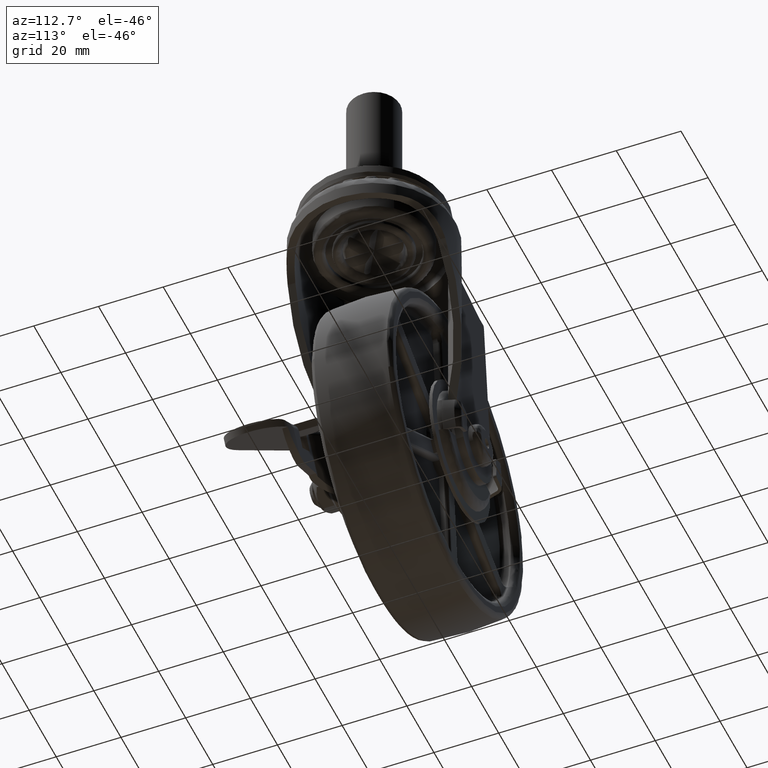
[diagram: clean part render]
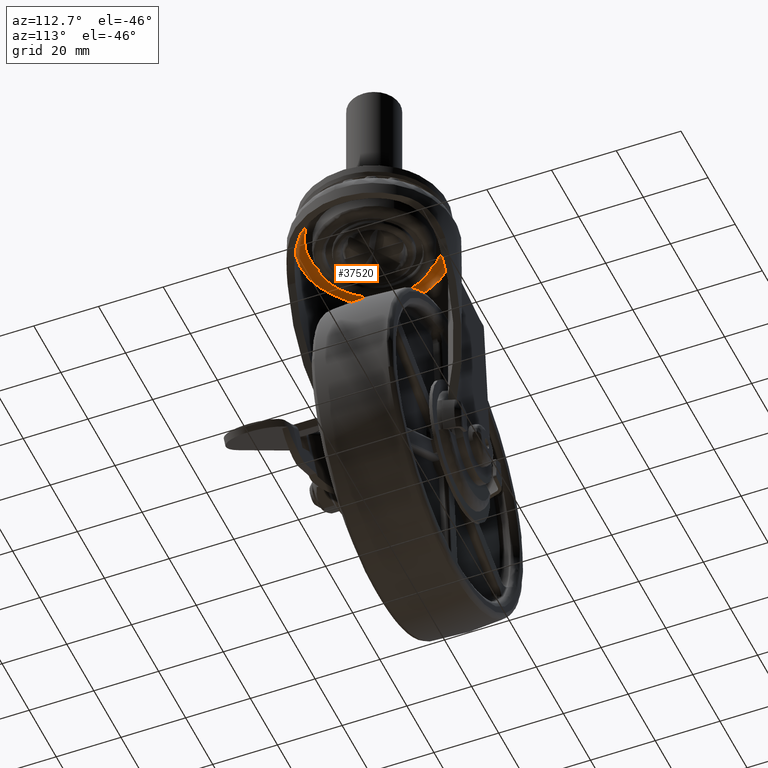
[diagram: same view with one face highlighted and labeled with its STEP entity id]
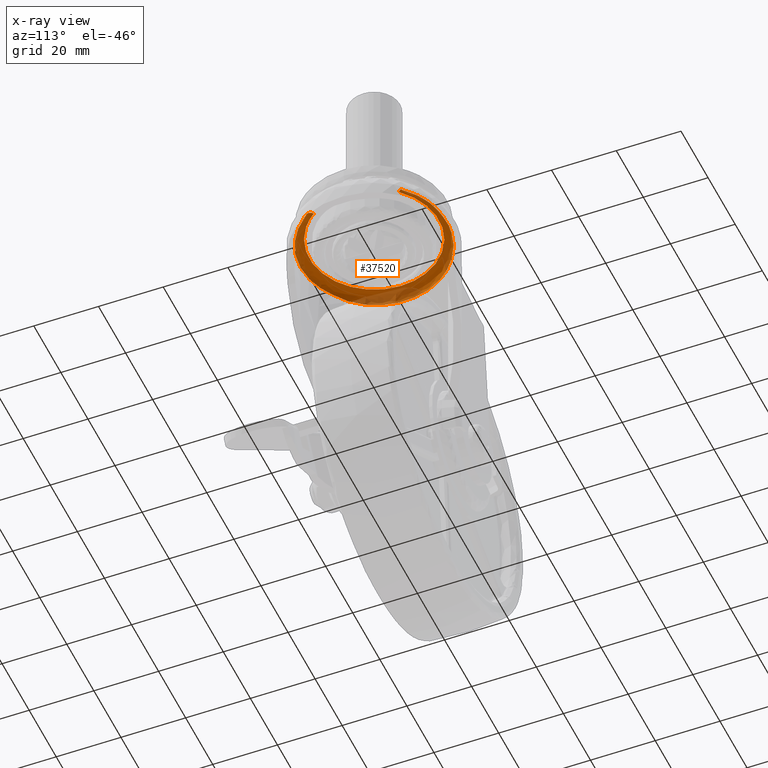
[diagram: x-ray of the same camera — body ghosted, the highlighted face saturated]
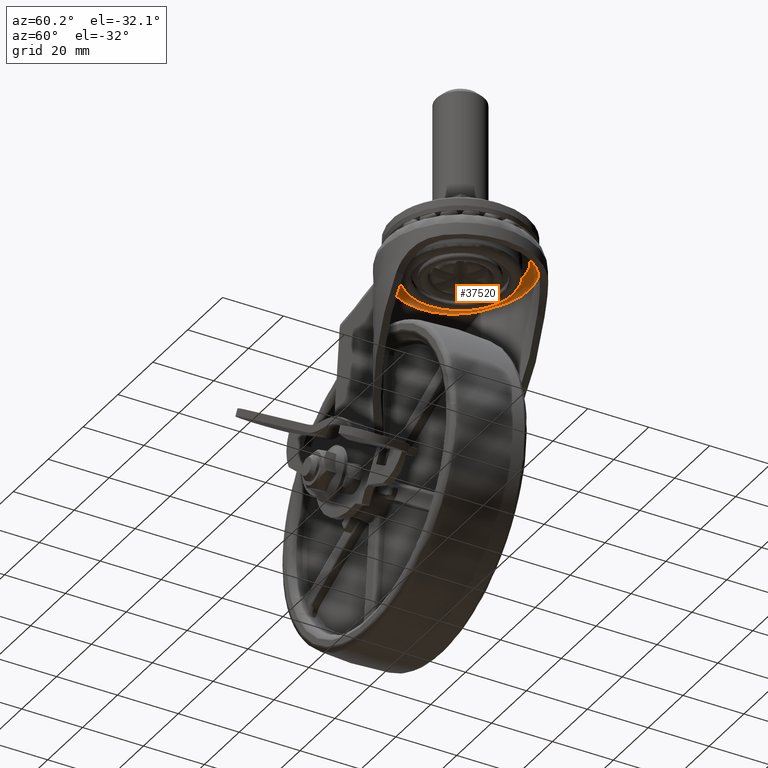
[diagram: same view with one face highlighted and labeled with its STEP entity id]
A machine part, auxiliary view. The second image highlights one B-rep face of the part: STEP entity #37520.
The next image is the same camera in x-ray: the body ghosted, the highlighted face saturated — about 25% of this face is hidden behind the body in this view.
A second angle (auxiliary view) of the same face is appended — the face is thin or edge-on in the first view.
In plain terms, the highlighted face is a freeform B-spline surface patch.
Its self-contained STEP definition (entity closure, byte-faithful):
#37278=CARTESIAN_POINT('',(48.043677421017364,15.080911270691319,57.307259519859684));
#37279=CARTESIAN_POINT('',(46.717406230158737,16.491851682513627,57.307259519859713));
#37280=CARTESIAN_POINT('',(45.165230569950012,17.649650817627556,57.307259519859691));
#37281=CARTESIAN_POINT('',(27.515579752322470,30.814881387577568,57.307259519859706));
#37282=CARTESIAN_POINT('',(14.350349182372456,13.165230569950012,57.307259519859691));
#37283=CARTESIAN_POINT('',(1.185118612422433,-4.484420247677530,57.307259519859706));
#37284=CARTESIAN_POINT('',(18.834769430049978,-17.649650817627546,57.307259519859691));
#37285=CARTESIAN_POINT('',(36.484420247677527,-30.814881387577568,57.307259519859706));
#37286=CARTESIAN_POINT('',(49.649650817627546,-13.165230569950022,57.307259519859691));
#37287=CARTESIAN_POINT('',(48.934800524242604,15.918558905852420,58.684582583563873));
#37288=CARTESIAN_POINT('',(47.534863498033275,17.407867983738893,58.684582583563866));
#37289=CARTESIAN_POINT('',(45.896474462001869,18.629975414957222,58.684582583563859));
#37290=CARTESIAN_POINT('',(27.266499047044665,32.526449876959113,58.684582583563859));
#37291=CARTESIAN_POINT('',(13.370024585042776,13.896474462001889,58.684582583563859));
#37292=CARTESIAN_POINT('',(-0.526449876959108,-4.733500952955327,58.684582583563859));
#37293=CARTESIAN_POINT('',(18.103525537998106,-18.629975414957222,58.684582583563859));
#37294=CARTESIAN_POINT('',(36.733500952955332,-32.526449876959113,58.684582583563859));
#37295=CARTESIAN_POINT('',(50.629975414957222,-13.896474462001889,58.684582583563859));
#37296=CARTESIAN_POINT('',(48.325499684939189,15.345821642844665,60.325770349296569));
#37297=CARTESIAN_POINT('',(46.975931294830424,16.781546548314147,60.325770349296576));
#37298=CARTESIAN_POINT('',(45.396490211172633,17.959683512771189,60.325770349296583));
#37299=CARTESIAN_POINT('',(27.436806698401440,31.356173723943826,60.325770349296576));
#37300=CARTESIAN_POINT('',(14.040316487228811,13.396490211172630,60.325770349296583));
#37301=CARTESIAN_POINT('',(0.643826276056178,-4.563193301598552,60.325770349296576));
#37302=CARTESIAN_POINT('',(18.603509788827370,-17.959683512771189,60.325770349296583));
#37303=CARTESIAN_POINT('',(36.563193301598552,-31.356173723943826,60.325770349296576));
#37304=CARTESIAN_POINT('',(49.959683512771193,-13.396490211172640,60.325770349296583));
#37305=CARTESIAN_POINT('',(47.710988295622421,14.768186510080469,61.980993038966702));
#37306=CARTESIAN_POINT('',(46.412219278420380,16.149869008066968,61.980993038966737));
#37307=CARTESIAN_POINT('',(44.892230251569018,17.283659484097569,61.980993038966716));
#37308=CARTESIAN_POINT('',(27.608570767471452,30.175889735666594,61.980993038966709));
#37309=CARTESIAN_POINT('',(14.716340515902433,12.892230251569027,61.980993038966716));
#37310=CARTESIAN_POINT('',(1.824110264333408,-4.391429232528544,61.980993038966709));
#37311=CARTESIAN_POINT('',(19.107769748430975,-17.283659484097569,61.980993038966716));
#37312=CARTESIAN_POINT('',(36.391429232528530,-30.175889735666594,61.980993038966709));
#37313=CARTESIAN_POINT('',(49.283659484097555,-12.892230251569027,61.980993038966716));
#37314=CARTESIAN_POINT('',(46.364971655180319,13.502943075505481,61.784913969404620));
#37315=CARTESIAN_POINT('',(45.177472831574669,14.766251885019715,61.784913969404641));
#37316=CARTESIAN_POINT('',(43.787706708905702,15.802906469991381,61.784913969404649));
#37317=CARTESIAN_POINT('',(27.984800238914332,27.590613178897083,61.784913969404649));
#37318=CARTESIAN_POINT('',(16.197093530008626,11.787706708905711,61.784913969404649));
#37319=CARTESIAN_POINT('',(4.409386821102918,-4.015199761085667,61.784913969404649));
#37320=CARTESIAN_POINT('',(20.212293291094294,-15.802906469991369,61.784913969404649));
#37321=CARTESIAN_POINT('',(36.015199761085675,-27.590613178897083,61.784913969404649));
#37322=CARTESIAN_POINT('',(47.802906469991363,-11.787706708905711,61.784913969404649));
#37330=(BOUNDED_SURFACE()B_SPLINE_SURFACE(2,2,((#37278,#37287,#37296,#37305,#37314),(#37279,#37288,#37297,#37306,#37315),(#37280,#37289,#37298,#37307,#37316),(#37281,#37290,#37299,#37308,#37317),(#37282,#37291,#37300,#37309,#37318),(#37283,#37292,#37301,#37310,#37319),(#37284,#37293,#37302,#37311,#37320),(#37285,#37294,#37303,#37312,#37321),(#37286,#37295,#37304,#37313,#37322)),.UNSPECIFIED.,.F.,.F.,.U.)B_SPLINE_SURFACE_WITH_KNOTS((3,2,2,2,3),(3,2,3),(0.0,4.509269734747122,42.086553360796749,79.663836986846377,117.241120612896000),(0.0,3.333181559444604,6.689469036548652),.UNSPECIFIED.)GEOMETRIC_REPRESENTATION_ITEM()RATIONAL_B_SPLINE_SURFACE(((0.906244645023180,0.761690527209105,0.938141003135439,0.760467356465174,0.908264195119170),(0.932048298862953,0.783378267716125,0.964852847261355,0.782120269429060,0.934125351943237),(0.966000464742874,0.811914759789196,1.0,0.810610935801285,0.968153179621809),(0.683065479249042,0.574110432392387,0.707106781186548,0.573188489609062,0.684587678537899),(0.966000464742874,0.811914759789196,1.0,0.810610935801285,0.968153179621809),(0.683065479249042,0.574110432392387,0.707106781186548,0.573188489609062,0.684587678537899),(0.966000464742874,0.811914759789196,1.0,0.810610935801285,0.968153179621809),(0.683065479249042,0.574110432392387,0.707106781186548,0.573188489609062,0.684587678537899),(0.966000464742874,0.811914759789196,1.0,0.810610935801285,0.968153179621809)))REPRESENTATION_ITEM('')SURFACE());
#37331=CARTESIAN_POINT('',(18.701894353294250,18.397021123242951,59.099995999999798));
#37332=VERTEX_POINT('',#37331);
#37333=CARTESIAN_POINT('',(48.539925625483562,15.547374707759250,59.099995999977843));
#37334=VERTEX_POINT('',#37333);
#37335=CARTESIAN_POINT('',(18.701894353294250,18.397021123242951,59.099995999999798));
#37336=CARTESIAN_POINT('',(19.254646987745240,18.796580099986731,59.099995999999820));
#37337=CARTESIAN_POINT('',(19.861092218583490,19.194600604840439,59.099995999999770));
#37338=CARTESIAN_POINT('',(20.521919135384451,19.584527489043801,59.099995999999713));
#37339=CARTESIAN_POINT('',(20.632779774345511,19.648256283768500,59.099995999999663));
#37340=CARTESIAN_POINT('',(20.780227781520750,19.733890925586390,59.099995999999621));
#37341=CARTESIAN_POINT('',(22.042911271905560,20.445489110928499,59.099995999999663));
#37342=CARTESIAN_POINT('',(24.582345503809449,21.580207951212419,59.099995999998811));
#37343=CARTESIAN_POINT('',(27.947561123843009,22.413760314224540,59.099995999997667));
#37344=CARTESIAN_POINT('',(31.344472903508919,22.761209687849579,59.099995999989652));
#37345=CARTESIAN_POINT('',(33.439515705832278,22.691740833823062,59.099996000010798));
#37346=CARTESIAN_POINT('',(34.793684767147823,22.527639729173838,59.099995999993610));
#37347=CARTESIAN_POINT('',(34.920449646990562,22.510857798834849,59.099995999992352));
#37348=CARTESIAN_POINT('',(35.089587870886717,22.489239748526479,59.099995999992949));
#37349=CARTESIAN_POINT('',(35.722709584148582,22.399605800885890,59.099995999992259));
#37350=CARTESIAN_POINT('',(36.394166778855727,22.277623903951248,59.099995999991862));
#37351=CARTESIAN_POINT('',(37.018353891177483,22.138806012579970,59.099995999991258));
#37352=CARTESIAN_POINT('',(37.225801984612332,22.089896422151401,59.099995999991059));
#37353=CARTESIAN_POINT('',(37.391868066000477,22.051196102020089,59.099995999990952));
#37354=CARTESIAN_POINT('',(37.557022104246521,22.008776063348719,59.099995999990803));
#37355=CARTESIAN_POINT('',(37.722420959918203,21.967337469742969,59.099995999990689));
#37356=CARTESIAN_POINT('',(38.999959695048517,21.629316213110322,59.099995999990071));
#37357=CARTESIAN_POINT('',(41.416060255131498,20.766154675623650,59.099995999986803));
#37358=CARTESIAN_POINT('',(45.082297525925171,18.732528680815431,59.099995999976407));
#37359=CARTESIAN_POINT('',(47.372296353298182,16.789989592625030,59.099996000009142));
#37360=CARTESIAN_POINT('',(48.539925625483562,15.547374707759250,59.099995999977843));
#37361=B_SPLINE_CURVE_WITH_KNOTS('',3,(#37335,#37336,#37337,#37338,#37339,#37340,#37341,#37342,#37343,#37344,#37345,#37346,#37347,#37348,#37349,#37350,#37351,#37352,#37353,#37354,#37355,#37356,#37357,#37358,#37359,#37360),.UNSPECIFIED.,.F.,.U.,(4,1,1,1,1,1,1,1,1,1,1,1,1,1,1,1,1,1,1,1,1,1,1,4),(0.000225705703429,2.046357083210420,2.174204280661307,2.302088621214303,2.429972961767266,2.685741629459074,6.650163374865208,10.742452401341071,13.044370442777620,16.880821559156079,17.008665574348381,17.136550432925770,17.264435291503158,17.520205252206459,19.054825660725019,19.310595354628390,19.438480109079471,19.694237071323510,19.822120896099982,19.950004720876422,20.205772562680082,23.786530923785090,27.623060171955739,32.738372296126101),.UNSPECIFIED.);
#37362=EDGE_CURVE('',#37332,#37334,#37361,.T.);
#37363=ORIENTED_EDGE('',*,*,#37362,.T.);
#37364=CARTESIAN_POINT('',(46.572621696743333,13.698127496002130,61.799995999999787));
#37365=VERTEX_POINT('',#37364);
#37366=CARTESIAN_POINT('',(48.539925625483562,15.547374707759250,59.099995999977843));
#37367=CARTESIAN_POINT('',(48.540396363679257,15.547817197215981,59.497749066340702));
#37368=CARTESIAN_POINT('',(48.449404157979089,15.462285378630339,60.049433304444122));
#37369=CARTESIAN_POINT('',(48.180845646262661,15.209842900494570,60.681500453709269));
#37370=CARTESIAN_POINT('',(47.937903639940913,14.981479696795850,61.068058057587692));
#37371=CARTESIAN_POINT('',(47.580945293263603,14.645942204266451,61.450510609008873));
#37372=CARTESIAN_POINT('',(47.119842637307507,14.212510039383030,61.731003481202038));
#37373=CARTESIAN_POINT('',(46.749663913590247,13.864545516651930,61.800066397176423));
#37374=CARTESIAN_POINT('',(46.572621696743333,13.698127496002130,61.799995999999787));
#37375=B_SPLINE_CURVE_WITH_KNOTS('',3,(#37366,#37367,#37368,#37369,#37370,#37371,#37372,#37373,#37374),.UNSPECIFIED.,.F.,.U.,(4,1,1,1,1,1,4),(0.000000280426249,1.192857296270434,1.656776737964149,2.186859229457120,2.717045804437318,3.512310611253453,4.241256509579759),.UNSPECIFIED.);
#37376=EDGE_CURVE('',#37334,#37365,#37375,.T.);
#37377=ORIENTED_EDGE('',*,*,#37376,.T.);
#37378=CARTESIAN_POINT('',(12.0,0.0,61.799995999999801));
#37379=VERTEX_POINT('',#37378);
#37380=CARTESIAN_POINT('',(46.572621696743333,13.698127496002130,61.799995999999787));
#37381=CARTESIAN_POINT('',(45.380776431117937,14.966744091311011,61.799995999999830));
#37382=CARTESIAN_POINT('',(43.245424089105107,16.713089478809760,61.799995999999773));
#37383=CARTESIAN_POINT('',(40.205114494934278,18.298003344440769,61.799995999999808));
#37384=CARTESIAN_POINT('',(37.811939991982420,19.184513742239218,61.799995999999773));
#37385=CARTESIAN_POINT('',(35.632552083527038,19.713678569703511,61.799995999999801));
#37386=CARTESIAN_POINT('',(33.099295866806578,20.023331268231740,61.799995999999773));
#37387=CARTESIAN_POINT('',(30.294110639177660,20.011477945095230,61.799995999999787));
#37388=CARTESIAN_POINT('',(26.723643517399939,19.425258011536709,61.799995999999872));
#37389=CARTESIAN_POINT('',(23.384858100264591,18.174040969193321,61.799995999999084));
#37390=CARTESIAN_POINT('',(20.606353081769960,16.506509499244430,61.799996000000043));
#37391=CARTESIAN_POINT('',(18.264877584272760,14.648000540867971,61.799995999999787));
#37392=CARTESIAN_POINT('',(16.273306416987470,12.492857943553350,61.799995999999773));
#37393=CARTESIAN_POINT('',(14.650581866837410,10.055658509834659,61.799995999999759));
#37394=CARTESIAN_POINT('',(13.346850884937609,7.434914712239101,61.799996000000426));
#37395=CARTESIAN_POINT('',(12.287905324060819,4.102764020798471,61.799995999997762));
#37396=CARTESIAN_POINT('',(11.999747045034139,1.429805631561118,61.799996000003027));
#37397=CARTESIAN_POINT('',(12.0,0.0,61.799995999999801));
#37398=B_SPLINE_CURVE_WITH_KNOTS('',3,(#37380,#37381,#37382,#37383,#37384,#37385,#37386,#37387,#37388,#37389,#37390,#37391,#37392,#37393,#37394,#37395,#37396,#37397),.UNSPECIFIED.,.F.,.U.,(4,1,1,1,1,1,1,1,1,1,1,1,1,1,1,4),(0.000000182436601,5.221833862302617,8.205713668167753,10.257181202521510,12.868107409189220,14.919567015879480,17.903462496480710,21.260417204627341,25.736138423201581,28.533562259505668,30.957998204218669,34.687924434965289,37.298848827521077,39.723286697332497,43.453158380495744,47.742522103877590),.UNSPECIFIED.);
#37399=EDGE_CURVE('',#37365,#37379,#37398,.T.);
#37400=ORIENTED_EDGE('',*,*,#37399,.T.);
#37401=CARTESIAN_POINT('',(48.031339703529142,-11.958099665987801,61.799995999999787));
#37402=VERTEX_POINT('',#37401);
#37403=CARTESIAN_POINT('',(12.0,0.0,61.799995999999801));
#37404=CARTESIAN_POINT('',(11.999837268869859,-1.302440188145932,61.799995999999851));
#37405=CARTESIAN_POINT('',(12.197930387215550,-3.321149488893691,61.799995999999680));
#37406=CARTESIAN_POINT('',(12.985714268205900,-6.418151983906057,61.799995999999787));
#37407=CARTESIAN_POINT('',(14.131005583464679,-9.198782330786559,61.799996000000043));
#37408=CARTESIAN_POINT('',(15.836532630117460,-11.908824431509039,61.799995999999723));
#37409=CARTESIAN_POINT('',(17.886219477508639,-14.278613555833660,61.799995999999780));
#37410=CARTESIAN_POINT('',(20.520998645256750,-16.526604025590359,61.799995999999872));
#37411=CARTESIAN_POINT('',(23.540745948668221,-18.238780634511770,61.799996000000050));
#37412=CARTESIAN_POINT('',(26.986958054776370,-19.457709927595861,61.799996000000192));
#37413=CARTESIAN_POINT('',(30.015909581809421,-19.989862533499831,61.799995999999361));
#37414=CARTESIAN_POINT('',(33.278394888877820,-20.031361868461829,61.799996000000490));
#37415=CARTESIAN_POINT('',(36.257533006565062,-19.630429347994831,61.799995999998579));
#37416=CARTESIAN_POINT('',(39.695143433370447,-18.586121562513181,61.799996000000192));
#37417=CARTESIAN_POINT('',(42.889588562041617,-16.920815696397209,61.799996000000419));
#37418=CARTESIAN_POINT('',(45.806603855010330,-14.604483098288171,61.799995999998089));
#37419=CARTESIAN_POINT('',(47.330571607074283,-12.897761858161831,61.799996000002452));
#37420=CARTESIAN_POINT('',(48.031339703529142,-11.958099665987801,61.799995999999787));
#37421=B_SPLINE_CURVE_WITH_KNOTS('',3,(#37403,#37404,#37405,#37406,#37407,#37408,#37409,#37410,#37411,#37412,#37413,#37414,#37415,#37416,#37417,#37418,#37419,#37420),.UNSPECIFIED.,.F.,.U.,(4,1,1,1,1,1,1,1,1,1,1,1,1,1,1,4),(0.000000154657464,3.907294017765132,6.056369197894824,9.573041900730615,12.894328612108151,15.629515903744201,18.950807584775070,23.248881512761550,25.983932144957240,29.891328473016980,32.431172232349738,35.752444703609413,38.878350087212652,43.176463533042117,46.497778642285333,50.014353892259592),.UNSPECIFIED.);
#37422=EDGE_CURVE('',#37379,#37402,#37421,.T.);
#37423=ORIENTED_EDGE('',*,*,#37422,.T.);
#37424=CARTESIAN_POINT('',(50.195570556595811,-13.572443115369580,59.099995999977942));
#37425=VERTEX_POINT('',#37424);
#37426=CARTESIAN_POINT('',(50.195570556595811,-13.572443115369580,59.099995999977942));
#37427=CARTESIAN_POINT('',(50.195848520726130,-13.572650454415241,59.453486967398852));
#37428=CARTESIAN_POINT('',(50.107388827342653,-13.506666584735809,60.005433517760423));
#37429=CARTESIAN_POINT('',(49.823797461120272,-13.295130064163610,60.647889572004381));
#37430=CARTESIAN_POINT('',(49.533286578019883,-13.078432136377790,61.068067657302372));
#37431=CARTESIAN_POINT('',(49.168630999889402,-12.806428184952059,61.423129645157232));
#37432=CARTESIAN_POINT('',(48.668701194259697,-12.433520458536050,61.718186692221380));
#37433=CARTESIAN_POINT('',(48.261526722763179,-12.129800806878370,61.800128610191209));
#37434=CARTESIAN_POINT('',(48.031339703529142,-11.958099665987801,61.799995999999787));
#37435=B_SPLINE_CURVE_WITH_KNOTS('',3,(#37426,#37427,#37428,#37429,#37430,#37431,#37432,#37433,#37434),.UNSPECIFIED.,.F.,.U.,(4,1,1,1,1,1,4),(0.000000280429873,1.060316049129142,1.656776736560929,2.186859227604856,2.717045802119911,3.379758452402221,4.241256505973808),.UNSPECIFIED.);
#37436=EDGE_CURVE('',#37425,#37402,#37435,.T.);
#37437=ORIENTED_EDGE('',*,*,#37436,.F.);
#37438=CARTESIAN_POINT('',(18.701894353294250,-18.397021123242951,59.099995999999798));
#37439=VERTEX_POINT('',#37438);
#37440=CARTESIAN_POINT('',(50.195570556595811,-13.572443115369580,59.099995999977942));
#37441=CARTESIAN_POINT('',(49.535723769476647,-14.457106579205000,59.099995999979711));
#37442=CARTESIAN_POINT('',(47.905598252690751,-16.339118072421989,59.099995999983712));
#37443=CARTESIAN_POINT('',(45.312063636227322,-18.492338790504331,59.099995999988423));
#37444=CARTESIAN_POINT('',(42.356031309626893,-20.280277593756480,59.099995999992828));
#37445=CARTESIAN_POINT('',(39.475823133986360,-21.522796220924160,59.099995999995699));
#37446=CARTESIAN_POINT('',(36.668055503430921,-22.264689394085892,59.099995999998889));
#37447=CARTESIAN_POINT('',(33.434884130089863,-22.740084764486870,59.099995999999983));
#37448=CARTESIAN_POINT('',(30.198763208735361,-22.740341058209339,59.099996000004197));
#37449=CARTESIAN_POINT('',(26.928278644163989,-22.178379313178318,59.099996000003003));
#37450=CARTESIAN_POINT('',(24.189387686779799,-21.374331640960559,59.099996000003763));
#37451=CARTESIAN_POINT('',(21.479669961065259,-20.205930417446950,59.099995999998320));
#37452=CARTESIAN_POINT('',(19.596300545860569,-19.043589958041728,59.099996000003642));
#37453=CARTESIAN_POINT('',(18.701894353294250,-18.397021123242951,59.099995999999798));
#37454=B_SPLINE_CURVE_WITH_KNOTS('',3,(#37440,#37441,#37442,#37443,#37444,#37445,#37446,#37447,#37448,#37449,#37450,#37451,#37452,#37453),.UNSPECIFIED.,.F.,.U.,(4,1,1,1,1,1,1,1,1,1,1,4),(0.000000101664234,3.310940831317357,7.449623067373970,10.070807288455461,13.657676432857389,16.830704157686800,18.761975936883580,23.452533678221680,26.487577569756311,28.694891701446910,32.005858513703721,35.316770059127109),.UNSPECIFIED.);
#37455=EDGE_CURVE('',#37425,#37439,#37454,.T.);
#37456=ORIENTED_EDGE('',*,*,#37455,.T.);
#37457=CARTESIAN_POINT('',(18.701894353294168,-18.397021123243039,59.099995999999813));
#37458=CARTESIAN_POINT('',(17.991517506734890,-17.883532211574401,58.974737428464579));
#37459=CARTESIAN_POINT('',(17.316894296675770,-17.322832302235330,58.855783186042679));
#37460=CARTESIAN_POINT('',(16.517258815366390,-16.564328182438619,58.714785913084192));
#37461=CARTESIAN_POINT('',(16.359523386754660,-16.409733364288630,58.686972908530201));
#37462=CARTESIAN_POINT('',(16.048446535888239,-16.094741648978211,58.632121681092350));
#37463=CARTESIAN_POINT('',(15.894893456910021,-15.934107806817959,58.605046137427301));
#37464=CARTESIAN_POINT('',(15.443189704264871,-15.446018002916020,58.525398599521942));
#37465=CARTESIAN_POINT('',(15.153506938244959,-15.111958959499340,58.474319725476732));
#37466=CARTESIAN_POINT('',(14.317712794024750,-14.084620433496790,58.326946706339619));
#37467=CARTESIAN_POINT('',(13.804733190766941,-13.366272151826930,58.236494585550503));
#37468=CARTESIAN_POINT('',(13.217187409799660,-12.427721374609529,58.132894439245099));
#37469=CARTESIAN_POINT('',(13.102372021120701,-12.237973009117930,58.112649393751482));
#37470=CARTESIAN_POINT('',(12.878127247186899,-11.854401016910730,58.073109000236080));
#37471=CARTESIAN_POINT('',(12.768543038689129,-11.660288044168020,58.053786352706467));
#37472=CARTESIAN_POINT('',(12.449177070722840,-11.074215945750600,57.997473530662539));
#37473=CARTESIAN_POINT('',(12.248909843622251,-10.678885917650931,57.962161024471733));
#37474=CARTESIAN_POINT('',(11.684538587049079,-9.479597436966920,57.862647171006067));
#37475=CARTESIAN_POINT('',(11.356735827360470,-8.662387734130611,57.804846715342599));
#37476=CARTESIAN_POINT('',(10.793553247553380,-6.994230679374052,57.705542457606938));
#37477=CARTESIAN_POINT('',(10.558183118731550,-6.143279789787036,57.664040364371381));
#37478=CARTESIAN_POINT('',(10.321506428753841,-5.058588508877152,57.622307889212770));
#37479=CARTESIAN_POINT('',(10.277057720865740,-4.840596530382773,57.614470384818297));
#37480=CARTESIAN_POINT('',(10.193967850803080,-4.402492613347003,57.599819402760637));
#37481=CARTESIAN_POINT('',(10.155339254973891,-4.182381591753085,57.593008140882652));
#37482=CARTESIAN_POINT('',(10.048813638073270,-3.522841351926366,57.574224805432578));
#37483=CARTESIAN_POINT('',(9.990003407189487,-3.082880879122042,57.563854977716723));
#37484=CARTESIAN_POINT('',(9.849209978917136,-1.762220027488582,57.539029304143106));
#37485=CARTESIAN_POINT('',(9.802721974087225,-0.880743322734066,57.530832216770790));
#37486=CARTESIAN_POINT('',(9.802845666015580,0.884246298069593,57.530854026989310));
#37487=CARTESIAN_POINT('',(9.849451908937823,1.767759094836237,57.539071962921923));
#37488=CARTESIAN_POINT('',(9.967767324836936,2.873463628714573,57.559934157485152));
#37489=CARTESIAN_POINT('',(9.994445088775361,3.094670470470760,57.564638165813797));
#37490=CARTESIAN_POINT('',(10.053925806677791,3.537218119837997,57.575126218450137));
#37491=CARTESIAN_POINT('',(10.086630708275800,3.757801741914837,57.580892973484758));
#37492=CARTESIAN_POINT('',(10.193403014826490,4.416321632502890,57.599719806964522));
#37493=CARTESIAN_POINT('',(10.276187424756991,4.851537148644606,57.614316928173508));
#37494=CARTESIAN_POINT('',(10.559038727850140,6.145892108493164,57.664191231304201));
#37495=CARTESIAN_POINT('',(10.793479858488331,6.993780496414535,57.705529517138103));
#37496=CARTESIAN_POINT('',(11.355534286794180,8.659061024896229,57.804634851378140));
#37497=CARTESIAN_POINT('',(11.683129859484909,9.476458967031190,57.862398774393448));
#37498=CARTESIAN_POINT('',(12.154358370733870,10.478000180991440,57.945489053125932));
#37499=CARTESIAN_POINT('',(12.251702088737460,10.677294410073550,57.962653372492660));
#37500=CARTESIAN_POINT('',(12.452721914629610,11.073810209261580,57.998098582121123));
#37501=CARTESIAN_POINT('',(12.556549474263971,11.271295252806210,58.016406177404932));
#37502=CARTESIAN_POINT('',(12.875859841364910,11.857147835269251,58.072709195518719));
#37503=CARTESIAN_POINT('',(13.099537514231290,12.239737674162940,58.112149593841487));
#37504=CARTESIAN_POINT('',(13.802982051047390,13.363572108403689,58.236185812452263));
#37505=CARTESIAN_POINT('',(14.315030841442150,14.080977321540320,58.326473805862882));
#37506=CARTESIAN_POINT('',(15.149930942255279,15.107735162810430,58.473689181066902));
#37507=CARTESIAN_POINT('',(15.439399676914389,15.441739974699050,58.524730315618420));
#37508=CARTESIAN_POINT('',(15.890950234270351,15.929936537641780,58.604350841068090));
#37509=CARTESIAN_POINT('',(16.044529277781610,16.090689865026210,58.631430962979650));
#37510=CARTESIAN_POINT('',(16.355785491095240,16.406031584883841,58.686313816847907));
#37511=CARTESIAN_POINT('',(16.513640058112880,16.560822783532679,58.714147828711802));
#37512=CARTESIAN_POINT('',(17.314028910131402,17.320401532921380,58.855277941217793));
#37513=CARTESIAN_POINT('',(17.989755613354120,17.882258644285500,58.974426759206217));
#37514=CARTESIAN_POINT('',(18.701894353294190,18.397021123243050,59.099995999999813));
#37515=B_SPLINE_CURVE_WITH_KNOTS('',3,(#37457,#37458,#37459,#37460,#37461,#37462,#37463,#37464,#37465,#37466,#37467,#37468,#37469,#37470,#37471,#37472,#37473,#37474,#37475,#37476,#37477,#37478,#37479,#37480,#37481,#37482,#37483,#37484,#37485,#37486,#37487,#37488,#37489,#37490,#37491,#37492,#37493,#37494,#37495,#37496,#37497,#37498,#37499,#37500,#37501,#37502,#37503,#37504,#37505,#37506,#37507,#37508,#37509,#37510,#37511,#37512,#37513,#37514),.UNSPECIFIED.,.F.,.U.,(4,2,2,2,2,2,2,2,2,2,2,2,2,2,2,2,2,2,2,2,2,2,2,2,2,2,2,2,4),(0.0,0.062500000000000,0.078125000000000,0.093750000000000,0.125000000000001,0.187500000000001,0.203125000000001,0.218750000000001,0.250000000000001,0.312500000000002,0.375000000000002,0.390625000000002,0.406250000000002,0.437500000000002,0.500000000000001,0.562500000000001,0.578125000000001,0.593750000000001,0.625000000000001,0.687500000000001,0.750000000000001,0.765625000000001,0.781250000000001,0.812500000000001,0.875000000000000,0.906250000000000,0.921875000000000,0.937500000000000,1.0),.UNSPECIFIED.);
#37516=EDGE_CURVE('',#37439,#37332,#37515,.T.);
#37517=ORIENTED_EDGE('',*,*,#37516,.T.);
#37518=EDGE_LOOP('',(#37363,#37377,#37400,#37423,#37437,#37456,#37517));
#37519=FACE_OUTER_BOUND('',#37518,.T.);
#37520=ADVANCED_FACE('',(#37519),#37330,.F.);